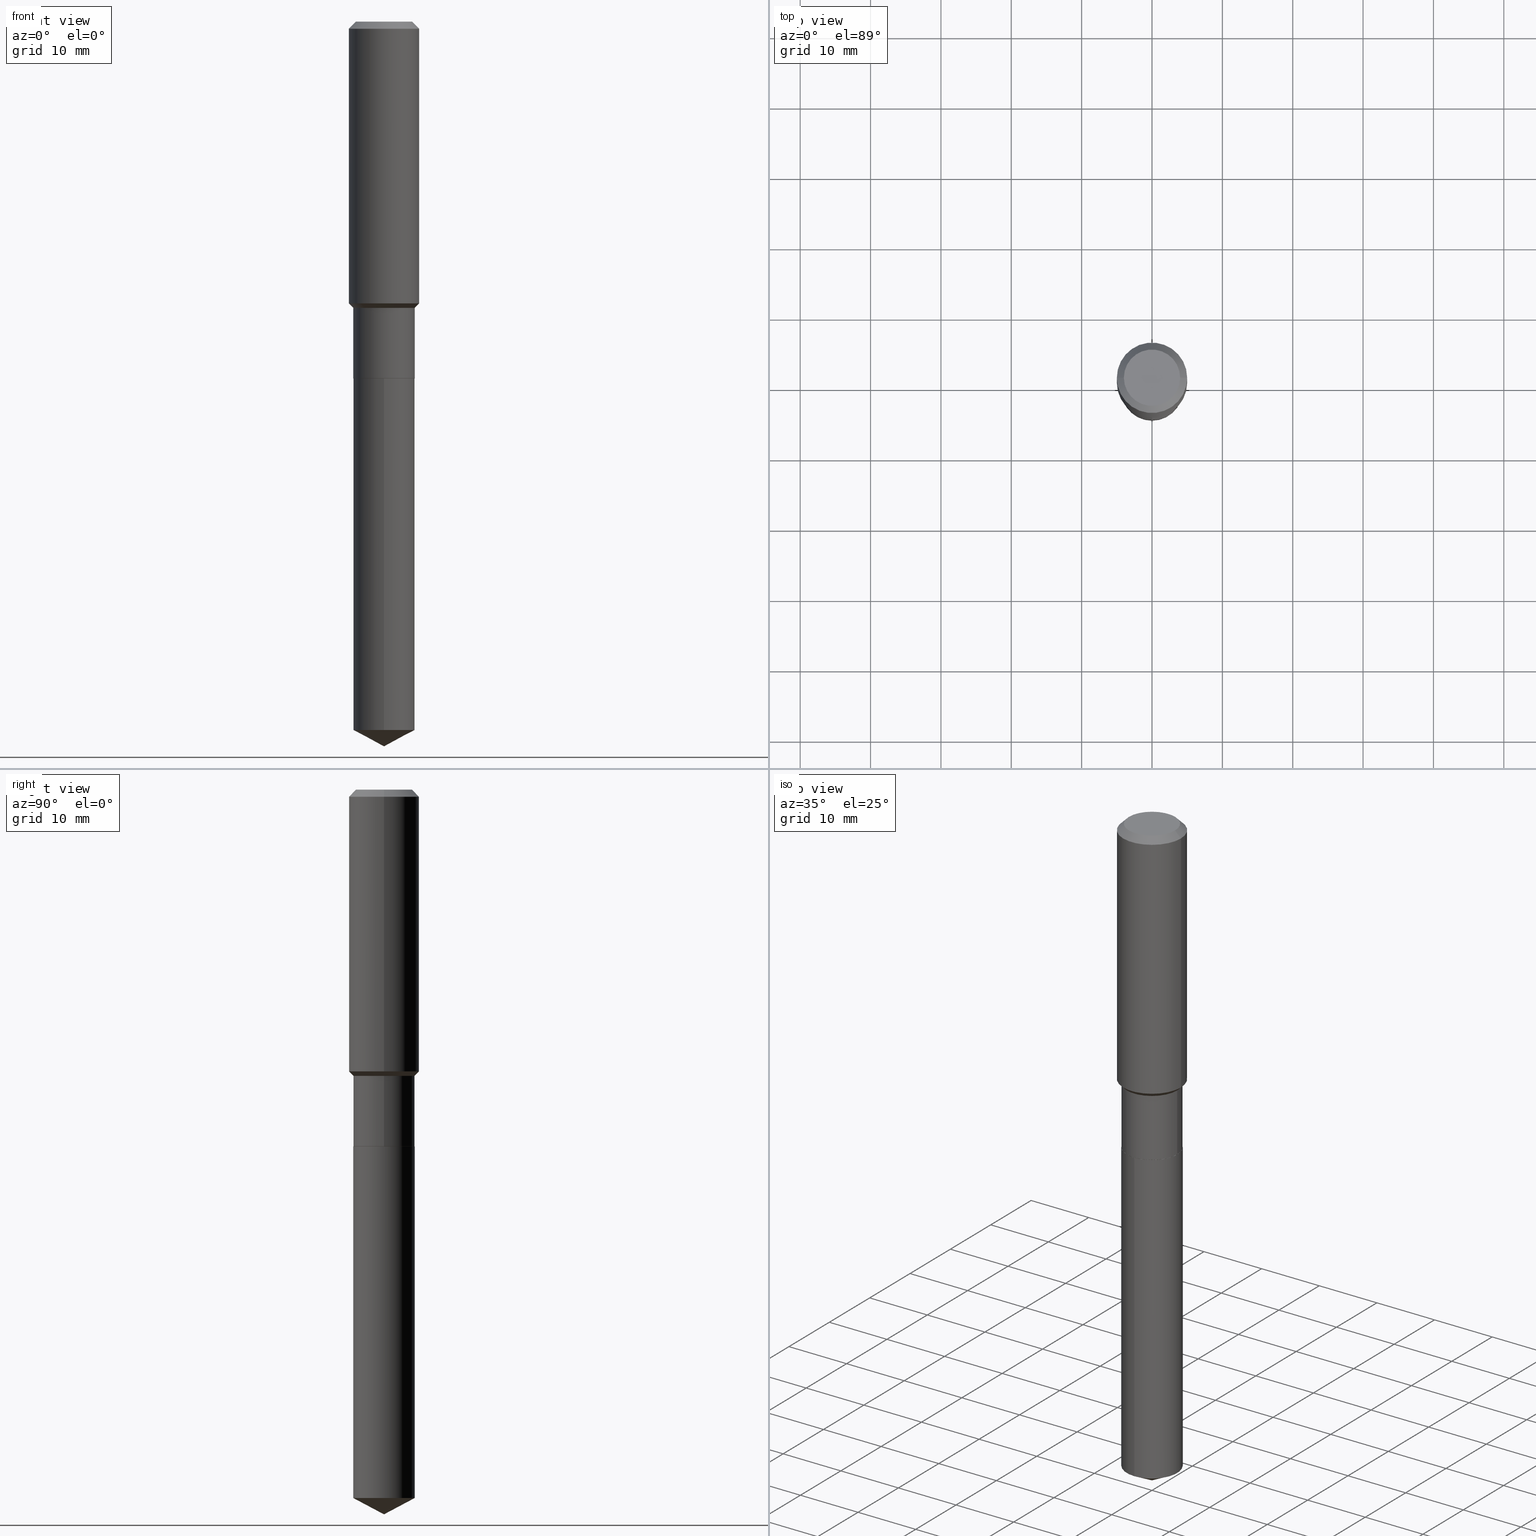
[diagram: canonical four-view strip — front | top / right | iso, engineering-drawing reading convention]
A machine part, canonical four-view strip (front | top / right | iso — engineering-drawing reading convention). The complete STEP part file that produces these views, byte-faithful:
ISO-10303-21;
HEADER;
FILE_DESCRIPTION (( 'STEP AP203' ),
    '1' );
FILE_NAME ('54818.STEP',
    '2024-04-24T15:56:48',
    ( '' ),
    ( '' ),
    'SwSTEP 2.0',
    'SolidWorks 2023',
    '' );
FILE_SCHEMA (( 'CONFIG_CONTROL_DESIGN' ));
ENDSEC;

DATA;
#1 = CARTESIAN_POINT ( 'NONE',  ( 3.916173746224877726E-29, -5.591258216023413300E-15, -1.601399999999999935 ) ) ;
#2 = FACE_OUTER_BOUND ( 'NONE', #102, .T. ) ;
#3 = CC_DESIGN_DATE_AND_TIME_ASSIGNMENT ( #110, #221, ( #424 ) ) ;
#4 = CARTESIAN_POINT ( 'NONE',  ( 4.883112112190480497E-29, -6.971789937401992754E-15, -1.996799999999999908 ) ) ;
#5 = DIRECTION ( 'NONE',  ( -6.982962677686266711E-15, -1.000000000000000000, 3.178415350394722068E-15 ) ) ;
#6 = CARTESIAN_POINT ( 'NONE',  ( 9.692712207603256326E-29, -1.383904135755968393E-14, -3.963599148697392494 ) ) ;
#7 =( CONVERSION_BASED_UNIT ( 'INCH', #355 ) LENGTH_UNIT ( ) NAMED_UNIT ( #206 ) );
#8 = AXIS2_PLACEMENT_3D ( 'NONE', #234, #80, #78 ) ;
#9 = LOCAL_TIME ( 11, 56, 48.00000000000000000, #60 ) ;
#10 = EDGE_CURVE ( 'NONE', #403, #21, #190, .T. ) ;
#11 = VERTEX_POINT ( 'NONE', #36 ) ;
#12 = DIRECTION ( 'NONE',  ( -0.7071067811865451302, 2.468850131082231817E-15, -0.7071067811865499042 ) ) ;
#13 = ORIENTED_EDGE ( 'NONE', *, *, #302, .F. ) ;
#14 = CARTESIAN_POINT ( 'NONE',  ( 0.1713999999999999690, -8.168669740357418199E-15, -1.996799999999999908 ) ) ;
#15 = CARTESIAN_POINT ( 'NONE',  ( -0.1968500000000001082, 1.398703375343757985E-15, -9.682923725166787881E-30 ) ) ;
#16 = CC_DESIGN_PERSON_AND_ORGANIZATION_ASSIGNMENT ( #361, #377, ( #68 ) ) ;
#17 = ORIENTED_EDGE ( 'NONE', *, *, #395, .F. ) ;
#18 = PERSON_AND_ORGANIZATION ( #441, #101 ) ;
#19 = DIRECTION ( 'NONE',  ( -2.445468806185136597E-29, 3.491481338843145583E-15, 1.000000000000000000 ) ) ;
#20 = COORDINATED_UNIVERSAL_TIME_OFFSET ( 5, 0, .BEHIND. ) ;
#21 = VERTEX_POINT ( 'NONE', #428 ) ;
#22 = LINE ( 'NONE', #364, #465 ) ;
#23 = PERSON_AND_ORGANIZATION ( #441, #101 ) ;
#24 = CC_DESIGN_PERSON_AND_ORGANIZATION_ASSIGNMENT ( #65, #436, ( #419 ) ) ;
#25 = ORIENTED_EDGE ( 'NONE', *, *, #359, .F. ) ;
#26 = DIRECTION ( 'NONE',  ( -2.445468806185136597E-29, 3.491481338843145583E-15, 1.000000000000000000 ) ) ;
#27 = DATE_AND_TIME ( #218, #442 ) ;
#28 = VECTOR ( 'NONE', #43, 39.37007874015748143 ) ;
#29 = EDGE_LOOP ( 'NONE', ( #55, #169, #129, #322 ) ) ;
#30 = DESIGN_CONTEXT ( 'detailed design', #279, 'design' ) ;
#31 = EDGE_CURVE ( 'NONE', #162, #445, #122, .T. ) ;
#32 = AXIS2_PLACEMENT_3D ( 'NONE', #385, #128, #91 ) ;
#33 = CARTESIAN_POINT ( 'NONE',  ( -0.1574800000000000089, 1.168406772637159618E-15, 3.855188123707939751E-18 ) ) ;
#34 = DIRECTION ( 'NONE',  ( -2.445468806185136877E-29, 3.491481338843145188E-15, 1.000000000000000000 ) ) ;
#35 = CC_DESIGN_DATE_AND_TIME_ASSIGNMENT ( #367, #178, ( #419 ) ) ;
#36 = CARTESIAN_POINT ( 'NONE',  ( 0.1718999999999999417, -6.791629500317682541E-15, -1.601399999999999935 ) ) ;
#37 = CARTESIAN_POINT ( 'NONE',  ( -0.1968500000000002192, -4.105442381275518145E-15, -1.576449999999999685 ) ) ;
#38 = AXIS2_PLACEMENT_3D ( 'NONE', #369, #212, #468 ) ;
#39 = AXIS2_PLACEMENT_3D ( 'NONE', #250, #56, #170 ) ;
#40 = ORIENTED_EDGE ( 'NONE', *, *, #71, .F. ) ;
#41 =( NAMED_UNIT ( * ) SI_UNIT ( $, .STERADIAN. ) SOLID_ANGLE_UNIT ( ) );
#42 = APPROVAL_PERSON_ORGANIZATION ( #467, #113, #108 ) ;
#43 = DIRECTION ( 'NONE',  ( -2.445468806185136877E-29, 3.491481338843145188E-15, 1.000000000000000000 ) ) ;
#44 = ORIENTED_EDGE ( 'NONE', *, *, #302, .T. ) ;
#45 = FACE_OUTER_BOUND ( 'NONE', #438, .T. ) ;
#46 = LINE ( 'NONE', #201, #82 ) ;
#47 = ORIENTED_EDGE ( 'NONE', *, *, #395, .T. ) ;
#48 = DIRECTION ( 'NONE',  ( 6.273719981627772387E-15, 0.8829475928589306521, 0.4694715627858840334 ) ) ;
#49 = ADVANCED_FACE ( 'NONE', ( #164 ), #317, .T. ) ;
#50 = ORIENTED_EDGE ( 'NONE', *, *, #341, .T. ) ;
#51 = AXIS2_PLACEMENT_3D ( 'NONE', #354, #431, #233 ) ;
#52 = CARTESIAN_POINT ( 'NONE',  ( 9.627810689950950651E-31, -1.374596203102555808E-16, -0.03937000000000027283 ) ) ;
#53 = AXIS2_PLACEMENT_3D ( 'NONE', #116, #365, #176 ) ;
#54 = AXIS2_PLACEMENT_3D ( 'NONE', #409, #70, #220 ) ;
#55 = ORIENTED_EDGE ( 'NONE', *, *, #408, .F. ) ;
#56 = DIRECTION ( 'NONE',  ( 2.438088387897960049E-29, -3.491481338843145188E-15, -1.000000000000000000 ) ) ;
#57 = ORIENTED_EDGE ( 'NONE', *, *, #398, .F. ) ;
#58 = ADVANCED_FACE ( 'NONE', ( #126 ), #312, .T. ) ;
#59 = LINE ( 'NONE', #15, #28 ) ;
#60 = COORDINATED_UNIVERSAL_TIME_OFFSET ( 5, 0, .BEHIND. ) ;
#61 = DIRECTION ( 'NONE',  ( -6.982962677686266711E-15, -1.000000000000000000, 3.178415350394722068E-15 ) ) ;
#62 = AXIS2_PLACEMENT_3D ( 'NONE', #79, #382, #384 ) ;
#63 = LOCAL_TIME ( 11, 56, 48.00000000000000000, #69 ) ;
#64 = ORIENTED_EDGE ( 'NONE', *, *, #341, .F. ) ;
#65 = PERSON_AND_ORGANIZATION ( #441, #101 ) ;
#66 = DIRECTION ( 'NONE',  ( 1.000000000000000000, -6.982962677686265922E-15, 4.876176775795935793E-29 ) ) ;
#67 = DIRECTION ( 'NONE',  ( -2.445394639609318977E-29, 3.491587549601015898E-15, 1.000000000000000000 ) ) ;
#68 = PRODUCT ( '54818', '54818', '', ( #429 ) ) ;
#69 = COORDINATED_UNIVERSAL_TIME_OFFSET ( 5, 0, .BEHIND. ) ;
#70 = DIRECTION ( 'NONE',  ( -2.445468806185136597E-29, 3.491481338843145583E-15, 1.000000000000000000 ) ) ;
#71 = EDGE_CURVE ( 'NONE', #21, #11, #87, .T. ) ;
#72 = VERTEX_POINT ( 'NONE', #120 ) ;
#73 = AXIS2_PLACEMENT_3D ( 'NONE', #257, #253, #360 ) ;
#74 = VECTOR ( 'NONE', #450, 39.37007874015748143 ) ;
#75 = APPROVAL_PERSON_ORGANIZATION ( #134, #77, #370 ) ;
#76 = LINE ( 'NONE', #306, #74 ) ;
#77 = APPROVAL ( #289, 'UNSPECIFIED' ) ;
#78 = DIRECTION ( 'NONE',  ( 1.000000000000000000, -6.982962677686265922E-15, 0.000000000000000000 ) ) ;
#79 = CARTESIAN_POINT ( 'NONE',  ( -8.635915615274354803E-28, 1.233059013239547111E-13, 35.31507874015748172 ) ) ;
#80 = DIRECTION ( 'NONE',  ( -2.445468806185136597E-29, 3.491481338843145583E-15, 1.000000000000000000 ) ) ;
#81 = AXIS2_PLACEMENT_3D ( 'NONE', #273, #329, #407 ) ;
#82 = VECTOR ( 'NONE', #222, 39.37007874015748143 ) ;
#83 = CC_DESIGN_APPROVAL ( #241, ( #276 ) ) ;
#84 = FACE_OUTER_BOUND ( 'NONE', #124, .T. ) ;
#85 = ADVANCED_FACE ( 'NONE', ( #397 ), #238, .T. ) ;
#86 = LINE ( 'NONE', #235, #343 ) ;
#87 = LINE ( 'NONE', #236, #326 ) ;
#88 = AXIS2_PLACEMENT_3D ( 'NONE', #52, #423, #125 ) ;
#89 = VERTEX_POINT ( 'NONE', #320 ) ;
#90 = CARTESIAN_POINT ( 'NONE',  ( 0.000000000000000000, 0.000000000000000000, 0.000000000000000000 ) ) ;
#91 = DIRECTION ( 'NONE',  ( -6.982962677686265133E-15, -1.000000000000000000, 3.541896320645543908E-15 ) ) ;
#92 = PRODUCT_RELATED_PRODUCT_CATEGORY ( 'detail', '', ( #68 ) ) ;
#93 = ORIENTED_EDGE ( 'NONE', *, *, #430, .F. ) ;
#94 = CARTESIAN_POINT ( 'NONE',  ( 4.883112112190480497E-29, -6.971789937401992754E-15, -1.996799999999999908 ) ) ;
#95 = EDGE_CURVE ( 'NONE', #72, #378, #225, .T. ) ;
#96 = ORIENTED_EDGE ( 'NONE', *, *, #10, .F. ) ;
#97 = FACE_OUTER_BOUND ( 'NONE', #433, .T. ) ;
#98 = CARTESIAN_POINT ( 'NONE',  ( -1.200371284294220332E-15, -0.1719000000000069361, -1.996799999999999020 ) ) ;
#99 = PLANE ( 'NONE',  #39 ) ;
#100 = CONICAL_SURFACE ( 'NONE', #452, 0.1968500000000000250, 0.7853981633974449483 ) ;
#101 = ORGANIZATION ( 'UNSPECIFIED', 'UNSPECIFIED', '' ) ;
#102 = EDGE_LOOP ( 'NONE', ( #481, #474, #254, #157 ) ) ;
#103 = DIRECTION ( 'NONE',  ( 0.7071067811865451302, -7.319954787623248157E-15, -0.7071067811865499042 ) ) ;
#104 = CYLINDRICAL_SURFACE ( 'NONE', #308, 0.1718999999999999695 ) ;
#105 = CARTESIAN_POINT ( 'NONE',  ( 1.221422962771708638E-15, 0.1718999999999861472, -3.963599148697392938 ) ) ;
#106 = AXIS2_PLACEMENT_3D ( 'NONE', #94, #274, #489 ) ;
#107 = ORIENTED_EDGE ( 'NONE', *, *, #290, .F. ) ;
#108 = APPROVAL_ROLE ( '' ) ;
#109 = CARTESIAN_POINT ( 'NONE',  ( -0.1718999999999999417, -5.059228243606380469E-15, -1.601399999999999935 ) ) ;
#110 = DATE_AND_TIME ( #298, #392 ) ;
#111 = EDGE_CURVE ( 'NONE', #389, #427, #356, .T. ) ;
#112 = EDGE_LOOP ( 'NONE', ( #25, #393, #44, #339 ) ) ;
#113 = APPROVAL ( #293, 'UNSPECIFIED' ) ;
#114 = CIRCLE ( 'NONE', #390, 0.1718999999999999695 ) ;
#115 = CIRCLE ( 'NONE', #53, 0.1968500000000000250 ) ;
#116 = CARTESIAN_POINT ( 'NONE',  ( 9.627810689950950651E-31, -1.374596203102555808E-16, -0.03937000000000027283 ) ) ;
#117 = FACE_OUTER_BOUND ( 'NONE', #331, .T. ) ;
#118 = CYLINDRICAL_SURFACE ( 'NONE', #483, 0.1718999999999999417 ) ;
#119 = ORIENTED_EDGE ( 'NONE', *, *, #31, .F. ) ;
#120 = CARTESIAN_POINT ( 'NONE',  ( 0.1574800000000000089, -1.284169937930321189E-15, 3.855188123724205385E-18 ) ) ;
#121 = EDGE_CURVE ( 'NONE', #21, #403, #284, .T. ) ;
#122 = CIRCLE ( 'NONE', #416, 0.1718999999999999695 ) ;
#123 = AXIS2_PLACEMENT_3D ( 'NONE', #4, #168, #426 ) ;
#124 = EDGE_LOOP ( 'NONE', ( #64, #141, #93 ) ) ;
#125 = DIRECTION ( 'NONE',  ( -1.000000000000000000, 6.982962677686265922E-15, 0.000000000000000000 ) ) ;
#126 = FACE_OUTER_BOUND ( 'NONE', #349, .T. ) ;
#127 = CARTESIAN_POINT ( 'NONE',  ( 0.000000000000000000, 0.000000000000000000, 0.000000000000000000 ) ) ;
#128 = DIRECTION ( 'NONE',  ( -2.445394639609318977E-29, 3.491587549601015898E-15, 1.000000000000000000 ) ) ;
#129 = ORIENTED_EDGE ( 'NONE', *, *, #71, .T. ) ;
#130 = CARTESIAN_POINT ( 'NONE',  ( 4.883112112190479937E-29, -6.971789937401991965E-15, -1.996799999999999686 ) ) ;
#131 = EDGE_CURVE ( 'NONE', #347, #136, #412, .T. ) ;
#132 = ORIENTED_EDGE ( 'NONE', *, *, #131, .T. ) ;
#133 = CARTESIAN_POINT ( 'NONE',  ( -0.1718999999999999417, -4.369835253251801494E-15, -1.601399999999999935 ) ) ;
#134 = PERSON_AND_ORGANIZATION ( #441, #101 ) ;
#135 = APPLICATION_CONTEXT ( 'configuration controlled 3d designs of mechanical parts and assemblies' ) ;
#136 = VERTEX_POINT ( 'NONE', #215 ) ;
#137 = DATE_AND_TIME ( #211, #63 ) ;
#138 = DIRECTION ( 'NONE',  ( -6.982962677686266711E-15, -1.000000000000000000, 3.178415350394722068E-15 ) ) ;
#139 = ORIENTED_EDGE ( 'NONE', *, *, #111, .F. ) ;
#140 = CARTESIAN_POINT ( 'NONE',  ( 0.1968500000000000250, -1.512055823412797189E-15, -0.03937000000000027283 ) ) ;
#141 = ORIENTED_EDGE ( 'NONE', *, *, #480, .T. ) ;
#142 = DIRECTION ( 'NONE',  ( -1.000000000000000000, 6.982962677686265922E-15, 0.000000000000000000 ) ) ;
#143 = AXIS2_PLACEMENT_3D ( 'NONE', #167, #387, #280 ) ;
#144 = CONICAL_SURFACE ( 'NONE', #417, 0.1713999999999999690, 0.7853981633972775267 ) ;
#145 = AXIS2_PLACEMENT_3D ( 'NONE', #127, #204, #281 ) ;
#146 = ORIENTED_EDGE ( 'NONE', *, *, #228, .F. ) ;
#147 = DIRECTION ( 'NONE',  ( 1.000000000000000000, -6.982962677686265133E-15, 0.000000000000000000 ) ) ;
#148 = APPROVAL_STATUS ( 'not_yet_approved' ) ;
#149 = ORIENTED_EDGE ( 'NONE', *, *, #121, .T. ) ;
#150 = EDGE_CURVE ( 'NONE', #11, #260, #464, .T. ) ;
#151 = AXIS2_PLACEMENT_3D ( 'NONE', #372, #479, #66 ) ;
#152 = DIRECTION ( 'NONE',  ( 1.000000000000000000, -6.982962677686265922E-15, 4.876223630392693006E-29 ) ) ;
#153 = EDGE_CURVE ( 'NONE', #136, #347, #114, .T. ) ;
#154 = DIRECTION ( 'NONE',  ( 1.000000000000000000, -6.982962677686266711E-15, 4.876176775795936353E-29 ) ) ;
#155 = CIRCLE ( 'NONE', #264, 0.1574800000000000089 ) ;
#156 = AXIS2_PLACEMENT_3D ( 'NONE', #130, #194, #243 ) ;
#157 = ORIENTED_EDGE ( 'NONE', *, *, #490, .F. ) ;
#158 = FACE_OUTER_BOUND ( 'NONE', #411, .T. ) ;
#159 = DIRECTION ( 'NONE',  ( -2.445468806185136597E-29, 3.491481338843145583E-15, 1.000000000000000000 ) ) ;
#160 = APPLICATION_PROTOCOL_DEFINITION ( 'international standard', 'config_control_design', 1994, #135 ) ;
#161 = ADVANCED_FACE ( 'NONE', ( #400 ), #100, .T. ) ;
#162 = VERTEX_POINT ( 'NONE', #105 ) ;
#163 = CIRCLE ( 'NONE', #239, 0.1718999999999999417 ) ;
#164 = FACE_OUTER_BOUND ( 'NONE', #406, .T. ) ;
#165 =( NAMED_UNIT ( * ) PLANE_ANGLE_UNIT ( ) SI_UNIT ( $, .RADIAN. ) );
#166 = ADVANCED_FACE ( 'NONE', ( #472 ), #144, .T. ) ;
#167 = CARTESIAN_POINT ( 'NONE',  ( 0.000000000000000000, 0.000000000000000000, 0.000000000000000000 ) ) ;
#168 = DIRECTION ( 'NONE',  ( -2.445468806185136597E-29, 3.491481338843145583E-15, 1.000000000000000000 ) ) ;
#169 = ORIENTED_EDGE ( 'NONE', *, *, #10, .T. ) ;
#170 = DIRECTION ( 'NONE',  ( -1.000000000000000000, 6.982962677686265922E-15, -4.876176775795935793E-29 ) ) ;
#171 = ORIENTED_EDGE ( 'NONE', *, *, #325, .F. ) ;
#172 = CARTESIAN_POINT ( 'NONE',  ( 9.627810689950950651E-31, -1.374596203102555808E-16, -0.03937000000000027283 ) ) ;
#173 = CLOSED_SHELL ( 'NONE', ( #444, #451, #58, #85, #49, #307, #262, #439, #161, #269, #224, #166 ) ) ;
#174 = AXIS2_PLACEMENT_3D ( 'NONE', #90, #321, #462 ) ;
#175 = APPROVAL_PERSON_ORGANIZATION ( #186, #241, #248 ) ;
#176 = DIRECTION ( 'NONE',  ( 1.000000000000000000, -6.982962677686265922E-15, 0.000000000000000000 ) ) ;
#177 = ORIENTED_EDGE ( 'NONE', *, *, #121, .F. ) ;
#178 = DATE_TIME_ROLE ( 'classification_date' ) ;
#179 = CARTESIAN_POINT ( 'NONE',  ( 4.883112112190479937E-29, -6.971789937401991965E-15, -1.996799999999999686 ) ) ;
#180 = EDGE_CURVE ( 'NONE', #260, #11, #163, .T. ) ;
#181 = ORIENTED_EDGE ( 'NONE', *, *, #153, .T. ) ;
#182 = CARTESIAN_POINT ( 'NONE',  ( 4.883112112190480497E-29, -6.971789937401992754E-15, -1.996799999999999908 ) ) ;
#183 = PERSON_AND_ORGANIZATION_ROLE ( 'creator' ) ;
#184 = EDGE_LOOP ( 'NONE', ( #187, #263, #244, #96 ) ) ;
#185 = CARTESIAN_POINT ( 'NONE',  ( 4.883112112190479937E-29, -6.971789937401991965E-15, -1.996799999999999686 ) ) ;
#186 = PERSON_AND_ORGANIZATION ( #441, #101 ) ;
#187 = ORIENTED_EDGE ( 'NONE', *, *, #386, .F. ) ;
#188 = MANIFOLD_SOLID_BREP ( 'Body-Move/Copy2[1]', #482 ) ;
#189 = DIRECTION ( 'NONE',  ( -2.445468806185136597E-29, 3.491481338843145583E-15, 1.000000000000000000 ) ) ;
#190 = CIRCLE ( 'NONE', #51, 0.1718999999999999695 ) ;
#191 = CIRCLE ( 'NONE', #8, 0.1968500000000002192 ) ;
#192 = DIRECTION ( 'NONE',  ( -6.165590087286841551E-15, -0.8829475928589272105, 0.4694715627858901952 ) ) ;
#193 = DIRECTION ( 'NONE',  ( 1.000000000000000000, -6.982962677686265922E-15, 4.876223630392693006E-29 ) ) ;
#194 = DIRECTION ( 'NONE',  ( -2.445394639609318977E-29, 3.491587549601015898E-15, 1.000000000000000000 ) ) ;
#195 = AXIS2_PLACEMENT_3D ( 'NONE', #185, #435, #61 ) ;
#196 = CONICAL_SURFACE ( 'NONE', #88, 0.1968500000000000250, 0.7853981633974449483 ) ;
#197 = DIRECTION ( 'NONE',  ( -2.445468806185136877E-29, 3.491481338843145188E-15, 1.000000000000000000 ) ) ;
#198 = ADVANCED_FACE ( 'NONE', ( #404 ), #104, .T. ) ;
#199 = ORIENTED_EDGE ( 'NONE', *, *, #305, .T. ) ;
#200 = CARTESIAN_POINT ( 'NONE',  ( 9.692712207603256326E-29, -1.383904135755968393E-14, -3.963599148697392494 ) ) ;
#201 = CARTESIAN_POINT ( 'NONE',  ( -0.1713999999999999690, -5.753919688309181058E-15, -1.996799999999999908 ) ) ;
#202 = VERTEX_POINT ( 'NONE', #140 ) ;
#203 = VERTEX_POINT ( 'NONE', #337 ) ;
#204 = DIRECTION ( 'NONE',  ( 0.000000000000000000, 0.000000000000000000, 1.000000000000000000 ) ) ;
#205 = VECTOR ( 'NONE', #12, 39.37007874015748143 ) ;
#206 = DIMENSIONAL_EXPONENTS ( 1.000000000000000000, 0.000000000000000000, 0.000000000000000000, 0.000000000000000000, 0.000000000000000000, 0.000000000000000000, 0.000000000000000000 ) ;
#207 = VERTEX_POINT ( 'NONE', #440 ) ;
#208 = LINE ( 'NONE', #133, #357 ) ;
#209 = UNCERTAINTY_MEASURE_WITH_UNIT (LENGTH_MEASURE( 1.000000000000000082E-05 ), #7, 'distance_accuracy_value', 'NONE');
#210 = ORIENTED_EDGE ( 'NONE', *, *, #256, .T. ) ;
#211 = CALENDAR_DATE ( 2024, 24, 4 ) ;
#212 = DIRECTION ( 'NONE',  ( -2.445468806185136597E-29, 3.491481338843145583E-15, 1.000000000000000000 ) ) ;
#213 = ORIENTED_EDGE ( 'NONE', *, *, #95, .T. ) ;
#214 = PERSON_AND_ORGANIZATION_ROLE ( 'creator' ) ;
#215 = CARTESIAN_POINT ( 'NONE',  ( 1.221422962771709230E-15, 0.1718999999999930028, -1.996800000000000130 ) ) ;
#216 = ORIENTED_EDGE ( 'NONE', *, *, #290, .T. ) ;
#217 = LINE ( 'NONE', #14, #226 ) ;
#218 = CALENDAR_DATE ( 2024, 24, 4 ) ;
#219 = ORIENTED_EDGE ( 'NONE', *, *, #386, .T. ) ;
#220 = DIRECTION ( 'NONE',  ( 1.000000000000000000, -6.982962677686269077E-15, 0.000000000000000000 ) ) ;
#221 = DATE_TIME_ROLE ( 'creation_date' ) ;
#222 = DIRECTION ( 'NONE',  ( -0.7071067811864267805, 7.493145998869918709E-15, 0.7071067811866682540 ) ) ;
#223 = ORIENTED_EDGE ( 'NONE', *, *, #282, .F. ) ;
#224 = ADVANCED_FACE ( 'NONE', ( #297 ), #259, .F. ) ;
#225 = CIRCLE ( 'NONE', #486, 0.1574800000000000089 ) ;
#226 = VECTOR ( 'NONE', #463, 39.37007874015748143 ) ;
#227 = PRODUCT_DEFINITION_SHAPE ( 'NONE', 'NONE',  #424 ) ;
#228 = EDGE_CURVE ( 'NONE', #72, #202, #22, .T. ) ;
#229 = DIRECTION ( 'NONE',  ( 2.445394639609318696E-29, -3.491587549601015898E-15, -1.000000000000000000 ) ) ;
#230 = AXIS2_PLACEMENT_3D ( 'NONE', #422, #456, #245 ) ;
#231 = VECTOR ( 'NONE', #192, 39.37007874015748854 ) ;
#232 = LINE ( 'NONE', #268, #379 ) ;
#233 = DIRECTION ( 'NONE',  ( 1.000000000000000000, -6.982962677686268288E-15, 0.000000000000000000 ) ) ;
#234 = CARTESIAN_POINT ( 'NONE',  ( 3.855159299510557695E-29, -5.504145756619275933E-15, -1.576449999999999685 ) ) ;
#235 = CARTESIAN_POINT ( 'NONE',  ( -0.1718999999999999417, 1.221422962771611806E-15, -8.455649420148180377E-30 ) ) ;
#236 = CARTESIAN_POINT ( 'NONE',  ( 0.1718999999999999417, -1.200371284294268847E-15, 8.382147877593211677E-30 ) ) ;
#237 = CARTESIAN_POINT ( 'NONE',  ( 9.916374052504005138E-29, -1.415796335034948786E-14, -4.054999999999999716 ) ) ;
#238 = CONICAL_SURFACE ( 'NONE', #247, 0.1718999999999999417, 0.7853981633974489451 ) ;
#239 = AXIS2_PLACEMENT_3D ( 'NONE', #376, #443, #294 ) ;
#240 = LOCAL_TIME ( 11, 56, 48.00000000000000000, #323 ) ;
#241 = APPROVAL ( #148, 'UNSPECIFIED' ) ;
#242 = ORIENTED_EDGE ( 'NONE', *, *, #352, .T. ) ;
#243 = DIRECTION ( 'NONE',  ( -6.982962677686266711E-15, -1.000000000000000000, 3.178415350394722068E-15 ) ) ;
#244 = ORIENTED_EDGE ( 'NONE', *, *, #246, .T. ) ;
#245 = DIRECTION ( 'NONE',  ( 1.000000000000000000, -6.982962677686266711E-15, 4.876176775795936353E-29 ) ) ;
#246 = EDGE_CURVE ( 'NONE', #207, #21, #217, .T. ) ;
#247 = AXIS2_PLACEMENT_3D ( 'NONE', #1, #159, #358 ) ;
#248 = APPROVAL_ROLE ( '' ) ;
#249 = CIRCLE ( 'NONE', #487, 0.1713999999999999690 ) ;
#250 = CARTESIAN_POINT ( 'NONE',  ( -4.713871149261283817E-47, 6.730158695841841775E-33, 1.927594061857935365E-18 ) ) ;
#251 = CC_DESIGN_PERSON_AND_ORGANIZATION_ASSIGNMENT ( #18, #475, ( #276 ) ) ;
#252 = EDGE_LOOP ( 'NONE', ( #327, #314 ) ) ;
#253 = DIRECTION ( 'NONE',  ( -2.445468806185136597E-29, 3.491481338843145583E-15, 1.000000000000000000 ) ) ;
#254 = ORIENTED_EDGE ( 'NONE', *, *, #398, .T. ) ;
#255 = APPROVAL_DATE_TIME ( #137, #241 ) ;
#256 = EDGE_CURVE ( 'NONE', #207, #300, #249, .T. ) ;
#257 = CARTESIAN_POINT ( 'NONE',  ( 4.881889377787387135E-29, -6.970044196732570461E-15, -1.996299999999999741 ) ) ;
#258 = ORIENTED_EDGE ( 'NONE', *, *, #315, .F. ) ;
#259 = PLANE ( 'NONE',  #151 ) ;
#260 = VERTEX_POINT ( 'NONE', #109 ) ;
#261 = FACE_OUTER_BOUND ( 'NONE', #453, .T. ) ;
#262 = ADVANCED_FACE ( 'NONE', ( #261 ), #413, .T. ) ;
#263 = ORIENTED_EDGE ( 'NONE', *, *, #418, .T. ) ;
#264 = AXIS2_PLACEMENT_3D ( 'NONE', #383, #189, #152 ) ;
#265 = CARTESIAN_POINT ( 'NONE',  ( -1.200371284294220332E-15, -0.1719000000000069361, -1.996799999999999020 ) ) ;
#266 = DIRECTION ( 'NONE',  ( -2.445468806185136597E-29, 3.491481338843145583E-15, 1.000000000000000000 ) ) ;
#267 = FACE_OUTER_BOUND ( 'NONE', #29, .T. ) ;
#268 = CARTESIAN_POINT ( 'NONE',  ( 0.1718999999999999417, -6.791629500317682541E-15, -1.601399999999999935 ) ) ;
#269 = ADVANCED_FACE ( 'NONE', ( #301 ), #99, .F. ) ;
#270 = ORIENTED_EDGE ( 'NONE', *, *, #180, .T. ) ;
#271 = DIRECTION ( 'NONE',  ( -2.445394639609318977E-29, 3.491587549601015898E-15, 1.000000000000000000 ) ) ;
#272 = DIRECTION ( 'NONE',  ( -2.445468806185136877E-29, 3.491481338843145188E-15, 1.000000000000000000 ) ) ;
#273 = CARTESIAN_POINT ( 'NONE',  ( 3.855159299510557695E-29, -5.504145756619275933E-15, -1.576449999999999685 ) ) ;
#274 = DIRECTION ( 'NONE',  ( -2.445468806185136597E-29, 3.491481338843145583E-15, 1.000000000000000000 ) ) ;
#275 = AXIS2_PLACEMENT_3D ( 'NONE', #448, #229, #342 ) ;
#276 = PRODUCT_DEFINITION_FORMATION_WITH_SPECIFIED_SOURCE ( 'ANY', '', #68, .NOT_KNOWN. ) ;
#277 = ORIENTED_EDGE ( 'NONE', *, *, #325, .T. ) ;
#278 = LINE ( 'NONE', #237, #484 ) ;
#279 = APPLICATION_CONTEXT ( 'configuration controlled 3d designs of mechanical parts and assemblies' ) ;
#280 = DIRECTION ( 'NONE',  ( 1.000000000000000000, -6.982962677686266711E-15, 4.876176775795935793E-29 ) ) ;
#281 = DIRECTION ( 'NONE',  ( 1.000000000000000000, 0.000000000000000000, 0.000000000000000000 ) ) ;
#282 = EDGE_CURVE ( 'NONE', #260, #427, #208, .T. ) ;
#283 = DIRECTION ( 'NONE',  ( -2.445468806185136597E-29, 3.491481338843145583E-15, 1.000000000000000000 ) ) ;
#284 = CIRCLE ( 'NONE', #73, 0.1718999999999999695 ) ;
#285 = ORIENTED_EDGE ( 'NONE', *, *, #315, .T. ) ;
#286 = PERSON_AND_ORGANIZATION ( #441, #101 ) ;
#287 = VECTOR ( 'NONE', #67, 39.37007874015748143 ) ;
#288 = DIRECTION ( 'NONE',  ( -0.7071067811865479058, 7.493145998870355738E-15, 0.7071067811865470176 ) ) ;
#289 = APPROVAL_STATUS ( 'not_yet_approved' ) ;
#290 = EDGE_CURVE ( 'NONE', #427, #203, #59, .T. ) ;
#291 = CARTESIAN_POINT ( 'NONE',  ( 4.883112112190480497E-29, -6.971789937401992754E-15, -1.996799999999999908 ) ) ;
#292 = ORIENTED_EDGE ( 'NONE', *, *, #246, .F. ) ;
#293 = APPROVAL_STATUS ( 'not_yet_approved' ) ;
#294 = DIRECTION ( 'NONE',  ( 1.000000000000000000, -6.982962677686269077E-15, 0.000000000000000000 ) ) ;
#295 = COORDINATED_UNIVERSAL_TIME_OFFSET ( 5, 0, .BEHIND. ) ;
#296 = APPROVAL_DATE_TIME ( #471, #113 ) ;
#297 = FACE_OUTER_BOUND ( 'NONE', #252, .T. ) ;
#298 = CALENDAR_DATE ( 2024, 24, 4 ) ;
#299 = CONICAL_SURFACE ( 'NONE', #32, 74.04434902938389484, 1.082104136236488490 ) ;
#300 = VERTEX_POINT ( 'NONE', #473 ) ;
#301 = FACE_OUTER_BOUND ( 'NONE', #488, .T. ) ;
#302 = EDGE_CURVE ( 'NONE', #445, #347, #449, .T. ) ;
#303 = ORIENTED_EDGE ( 'NONE', *, *, #111, .T. ) ;
#304 = CIRCLE ( 'NONE', #338, 0.1968500000000000250 ) ;
#305 = EDGE_CURVE ( 'NONE', #389, #202, #447, .T. ) ;
#306 = CARTESIAN_POINT ( 'NONE',  ( 1.221422962771660715E-15, 0.1718999999999930028, -1.996800000000000130 ) ) ;
#307 = ADVANCED_FACE ( 'NONE', ( #267 ), #118, .T. ) ;
#308 = AXIS2_PLACEMENT_3D ( 'NONE', #179, #324, #333 ) ;
#309 = CARTESIAN_POINT ( 'NONE',  ( 0.000000000000000000, 0.000000000000000000, 0.000000000000000000 ) ) ;
#310 = DIRECTION ( 'NONE',  ( -2.445468806185136597E-29, 3.491481338843145583E-15, 1.000000000000000000 ) ) ;
#311 = ORIENTED_EDGE ( 'NONE', *, *, #150, .T. ) ;
#312 = CYLINDRICAL_SURFACE ( 'NONE', #143, 0.1968500000000001082 ) ;
#313 = DIRECTION ( 'NONE',  ( -6.982962677686266711E-15, -1.000000000000000000, 3.178415350394722068E-15 ) ) ;
#314 = ORIENTED_EDGE ( 'NONE', *, *, #418, .F. ) ;
#315 = EDGE_CURVE ( 'NONE', #11, #389, #232, .T. ) ;
#316 = CC_DESIGN_APPROVAL ( #77, ( #424 ) ) ;
#317 = CYLINDRICAL_SURFACE ( 'NONE', #230, 0.1718999999999999417 ) ;
#318 =( LENGTH_UNIT ( ) NAMED_UNIT ( * ) SI_UNIT ( $, .METRE. ) );
#319 = SECURITY_CLASSIFICATION_LEVEL ( 'unclassified' ) ;
#320 = CARTESIAN_POINT ( 'NONE',  ( 9.916075263615787221E-29, -1.415838751363211889E-14, -4.054999999999999716 ) ) ;
#321 = DIRECTION ( 'NONE',  ( -2.445468806185136597E-29, 3.491481338843145583E-15, 1.000000000000000000 ) ) ;
#322 = ORIENTED_EDGE ( 'NONE', *, *, #180, .F. ) ;
#323 = COORDINATED_UNIVERSAL_TIME_OFFSET ( 5, 0, .BEHIND. ) ;
#324 = DIRECTION ( 'NONE',  ( -2.445394639609318977E-29, 3.491587549601015898E-15, 1.000000000000000000 ) ) ;
#325 = EDGE_CURVE ( 'NONE', #427, #389, #191, .T. ) ;
#326 = VECTOR ( 'NONE', #197, 39.37007874015748143 ) ;
#327 = ORIENTED_EDGE ( 'NONE', *, *, #256, .F. ) ;
#328 = CONICAL_SURFACE ( 'NONE', #62, 74.04434902938389484, 1.082104136236488490 ) ;
#329 = DIRECTION ( 'NONE',  ( -2.445468806185136597E-29, 3.491481338843145583E-15, 1.000000000000000000 ) ) ;
#330 = CARTESIAN_POINT ( 'NONE',  ( 9.627810689950950651E-31, -1.374596203102555808E-16, -0.03937000000000027283 ) ) ;
#331 = EDGE_LOOP ( 'NONE', ( #466, #50, #119 ) ) ;
#332 = CALENDAR_DATE ( 2024, 24, 4 ) ;
#333 = DIRECTION ( 'NONE',  ( -6.982962677686266711E-15, -1.000000000000000000, 3.178415350394722068E-15 ) ) ;
#334 = ORIENTED_EDGE ( 'NONE', *, *, #305, .F. ) ;
#335 = DIRECTION ( 'NONE',  ( 1.000000000000000000, -6.982962677686265133E-15, 0.000000000000000000 ) ) ;
#336 = ORIENTED_EDGE ( 'NONE', *, *, #359, .T. ) ;
#337 = CARTESIAN_POINT ( 'NONE',  ( -0.1968500000000000250, -1.422099313121007378E-15, -0.03937000000000027283 ) ) ;
#338 = AXIS2_PLACEMENT_3D ( 'NONE', #330, #310, #457 ) ;
#339 = ORIENTED_EDGE ( 'NONE', *, *, #153, .F. ) ;
#340 = FACE_OUTER_BOUND ( 'NONE', #375, .T. ) ;
#341 = EDGE_CURVE ( 'NONE', #89, #445, #485, .T. ) ;
#342 = DIRECTION ( 'NONE',  ( 6.982962677686265922E-15, 1.000000000000000000, -3.491587549601015898E-15 ) ) ;
#343 = VECTOR ( 'NONE', #272, 39.37007874015748143 ) ;
#344 = ADVANCED_FACE ( 'NONE', ( #340 ), #415, .F. ) ;
#345 = ORIENTED_EDGE ( 'NONE', *, *, #490, .T. ) ;
#346 = CARTESIAN_POINT ( 'NONE',  ( -1.200371284294172211E-15, -0.1719000000000137640, -3.963599148697392049 ) ) ;
#347 = VERTEX_POINT ( 'NONE', #265 ) ;
#348 = MANIFOLD_SOLID_BREP ( 'Body-Move/Copy2[2]', #173 ) ;
#349 = EDGE_LOOP ( 'NONE', ( #303, #216, #57, #334 ) ) ;
#350 = CARTESIAN_POINT ( 'NONE',  ( 0.1968500000000002192, -6.878741959721819908E-15, -1.576449999999999685 ) ) ;
#351 = CARTESIAN_POINT ( 'NONE',  ( -0.1968500000000000250, 1.237136582792286225E-15, -0.03937000000000027283 ) ) ;
#352 = EDGE_CURVE ( 'NONE', #378, #72, #155, .T. ) ;
#353 = ADVANCED_BREP_SHAPE_REPRESENTATION ( '54818', ( #188, #348, #145 ), #399 ) ;
#354 = CARTESIAN_POINT ( 'NONE',  ( 4.881889377787387135E-29, -6.970044196732570461E-15, -1.996299999999999741 ) ) ;
#355 = LENGTH_MEASURE_WITH_UNIT ( LENGTH_MEASURE( 0.02539999999999999897 ), #318 );
#356 = CIRCLE ( 'NONE', #81, 0.1968500000000002192 ) ;
#357 = VECTOR ( 'NONE', #288, 39.37007874015748854 ) ;
#358 = DIRECTION ( 'NONE',  ( 1.000000000000000000, -6.982962677686269077E-15, 0.000000000000000000 ) ) ;
#359 = EDGE_CURVE ( 'NONE', #162, #136, #76, .T. ) ;
#360 = DIRECTION ( 'NONE',  ( 1.000000000000000000, -6.982962677686268288E-15, 0.000000000000000000 ) ) ;
#361 = PERSON_AND_ORGANIZATION ( #441, #101 ) ;
#362 = ORIENTED_EDGE ( 'NONE', *, *, #150, .F. ) ;
#363 = CALENDAR_DATE ( 2024, 24, 4 ) ;
#364 = CARTESIAN_POINT ( 'NONE',  ( 0.1968500000000000250, -1.487948651171581601E-15, -0.03937000000000027283 ) ) ;
#365 = DIRECTION ( 'NONE',  ( -2.445468806185136597E-29, 3.491481338843145583E-15, 1.000000000000000000 ) ) ;
#366 = ORIENTED_EDGE ( 'NONE', *, *, #282, .T. ) ;
#367 = DATE_AND_TIME ( #363, #9 ) ;
#368 = CONICAL_SURFACE ( 'NONE', #106, 0.1713999999999999690, 0.7853981633972775267 ) ;
#369 = CARTESIAN_POINT ( 'NONE',  ( 3.916173746224877726E-29, -5.591258216023413300E-15, -1.601399999999999935 ) ) ;
#370 = APPROVAL_ROLE ( '' ) ;
#371 = ORIENTED_EDGE ( 'NONE', *, *, #131, .F. ) ;
#372 = CARTESIAN_POINT ( 'NONE',  ( 2.660723506269796897E-29, -1.015437691158448916E-14, -1.996799999999999908 ) ) ;
#373 = APPROVAL_DATE_TIME ( #27, #77 ) ;
#374 = ADVANCED_FACE ( 'NONE', ( #117 ), #328, .T. ) ;
#375 = EDGE_LOOP ( 'NONE', ( #132, #181 ) ) ;
#376 = CARTESIAN_POINT ( 'NONE',  ( 3.916173746224877726E-29, -5.591258216023413300E-15, -1.601399999999999935 ) ) ;
#377 = PERSON_AND_ORGANIZATION_ROLE ( 'design_owner' ) ;
#378 = VERTEX_POINT ( 'NONE', #33 ) ;
#379 = VECTOR ( 'NONE', #420, 39.37007874015748854 ) ;
#380 = CC_DESIGN_SECURITY_CLASSIFICATION ( #419, ( #276 ) ) ;
#381 = ADVANCED_FACE ( 'NONE', ( #84 ), #299, .T. ) ;
#382 = DIRECTION ( 'NONE',  ( -2.445394639609318977E-29, 3.491587549601015898E-15, 1.000000000000000000 ) ) ;
#383 = CARTESIAN_POINT ( 'NONE',  ( -9.427742298522567634E-47, 1.346031739168368355E-32, 3.855188123715870730E-18 ) ) ;
#384 = DIRECTION ( 'NONE',  ( -6.982962677686265133E-15, -1.000000000000000000, 3.541896320645543908E-15 ) ) ;
#385 = CARTESIAN_POINT ( 'NONE',  ( -8.635915615274354803E-28, 1.233059013239547111E-13, 35.31507874015748172 ) ) ;
#386 = EDGE_CURVE ( 'NONE', #300, #403, #46, .T. ) ;
#387 = DIRECTION ( 'NONE',  ( -2.445468806185136597E-29, 3.491481338843145583E-15, 1.000000000000000000 ) ) ;
#388 = CYLINDRICAL_SURFACE ( 'NONE', #174, 0.1968500000000001082 ) ;
#389 = VERTEX_POINT ( 'NONE', #350 ) ;
#390 = AXIS2_PLACEMENT_3D ( 'NONE', #476, #437, #138 ) ;
#391 = CIRCLE ( 'NONE', #123, 0.1713999999999999690 ) ;
#392 = LOCAL_TIME ( 11, 56, 48.00000000000000000, #20 ) ;
#393 = ORIENTED_EDGE ( 'NONE', *, *, #31, .T. ) ;
#394 = LINE ( 'NONE', #351, #205 ) ;
#395 = EDGE_CURVE ( 'NONE', #203, #202, #115, .T. ) ;
#396 = ORIENTED_EDGE ( 'NONE', *, *, #408, .T. ) ;
#397 = FACE_OUTER_BOUND ( 'NONE', #425, .T. ) ;
#398 = EDGE_CURVE ( 'NONE', #202, #203, #304, .T. ) ;
#399 =( GEOMETRIC_REPRESENTATION_CONTEXT ( 3 ) GLOBAL_UNCERTAINTY_ASSIGNED_CONTEXT ( ( #209 ) ) GLOBAL_UNIT_ASSIGNED_CONTEXT ( ( #7, #165, #41 ) ) REPRESENTATION_CONTEXT ( 'NONE', 'WORKASPACE' ) );
#400 = FACE_OUTER_BOUND ( 'NONE', #458, .T. ) ;
#401 = ORIENTED_EDGE ( 'NONE', *, *, #430, .T. ) ;
#402 = DIRECTION ( 'NONE',  ( 2.445468806185136597E-29, -3.491481338843145583E-15, -1.000000000000000000 ) ) ;
#403 = VERTEX_POINT ( 'NONE', #421 ) ;
#404 = FACE_OUTER_BOUND ( 'NONE', #112, .T. ) ;
#405 = APPLICATION_PROTOCOL_DEFINITION ( 'international standard', 'config_control_design', 1994, #279 ) ;
#406 = EDGE_LOOP ( 'NONE', ( #149, #396, #362, #40 ) ) ;
#407 = DIRECTION ( 'NONE',  ( 1.000000000000000000, -6.982962677686265922E-15, 0.000000000000000000 ) ) ;
#408 = EDGE_CURVE ( 'NONE', #403, #260, #86, .T. ) ;
#409 = CARTESIAN_POINT ( 'NONE',  ( 3.916173746224877726E-29, -5.591258216023413300E-15, -1.601399999999999935 ) ) ;
#410 = CARTESIAN_POINT ( 'NONE',  ( 9.916075263615787221E-29, -1.415838751363211889E-14, -4.054999999999999716 ) ) ;
#411 = EDGE_LOOP ( 'NONE', ( #401, #336, #371, #13 ) ) ;
#412 = CIRCLE ( 'NONE', #195, 0.1718999999999999695 ) ;
#413 = CONICAL_SURFACE ( 'NONE', #54, 0.1718999999999999417, 0.7853981633974489451 ) ;
#414 = CC_DESIGN_PERSON_AND_ORGANIZATION_ASSIGNMENT ( #286, #214, ( #276 ) ) ;
#415 = PLANE ( 'NONE',  #275 ) ;
#416 = AXIS2_PLACEMENT_3D ( 'NONE', #6, #460, #5 ) ;
#417 = AXIS2_PLACEMENT_3D ( 'NONE', #291, #19, #147 ) ;
#418 = EDGE_CURVE ( 'NONE', #300, #207, #391, .T. ) ;
#419 = SECURITY_CLASSIFICATION ( '', '', #319 ) ;
#420 = DIRECTION ( 'NONE',  ( 0.7071067811865479058, -2.468850131082261399E-15, 0.7071067811865470176 ) ) ;
#421 = CARTESIAN_POINT ( 'NONE',  ( -0.1718999999999999695, -5.059228243606378892E-15, -1.996299999999999741 ) ) ;
#422 = CARTESIAN_POINT ( 'NONE',  ( 0.000000000000000000, 0.000000000000000000, 0.000000000000000000 ) ) ;
#423 = DIRECTION ( 'NONE',  ( 2.445468806185136597E-29, -3.491481338843145583E-15, -1.000000000000000000 ) ) ;
#424 = PRODUCT_DEFINITION ( 'UNKNOWN', '', #276, #30 ) ;
#425 = EDGE_LOOP ( 'NONE', ( #311, #366, #139, #258 ) ) ;
#426 = DIRECTION ( 'NONE',  ( 1.000000000000000000, -6.982962677686265133E-15, 0.000000000000000000 ) ) ;
#427 = VERTEX_POINT ( 'NONE', #37 ) ;
#428 = CARTESIAN_POINT ( 'NONE',  ( 0.1718999999999999695, -8.170415481026838913E-15, -1.996299999999999741 ) ) ;
#429 = MECHANICAL_CONTEXT ( 'NONE', #135, 'mechanical' ) ;
#430 = EDGE_CURVE ( 'NONE', #445, #162, #432, .T. ) ;
#431 = DIRECTION ( 'NONE',  ( -2.445468806185136597E-29, 3.491481338843145583E-15, 1.000000000000000000 ) ) ;
#432 = CIRCLE ( 'NONE', #446, 0.1718999999999999695 ) ;
#433 = EDGE_LOOP ( 'NONE', ( #107, #277, #199, #17 ) ) ;
#434 = SHAPE_DEFINITION_REPRESENTATION ( #227, #353 ) ;
#435 = DIRECTION ( 'NONE',  ( -2.445394639609318977E-29, 3.491587549601015898E-15, 1.000000000000000000 ) ) ;
#436 = PERSON_AND_ORGANIZATION_ROLE ( 'classification_officer' ) ;
#437 = DIRECTION ( 'NONE',  ( -2.445394639609318977E-29, 3.491587549601015898E-15, 1.000000000000000000 ) ) ;
#438 = EDGE_LOOP ( 'NONE', ( #210, #219, #177, #292 ) ) ;
#439 = ADVANCED_FACE ( 'NONE', ( #97 ), #388, .T. ) ;
#440 = CARTESIAN_POINT ( 'NONE',  ( 0.1713999999999999690, -8.168669740357418199E-15, -1.996799999999999908 ) ) ;
#441 = PERSON ( 'UNSPECIFIED', 'UNSPECIFIED', 'UNSPECIFIED', ('UNSPECIFIED'), ('UNSPECIFIED'), ('UNSPECIFIED') ) ;
#442 = LOCAL_TIME ( 11, 56, 48.00000000000000000, #295 ) ;
#443 = DIRECTION ( 'NONE',  ( -2.445468806185136597E-29, 3.491481338843145583E-15, 1.000000000000000000 ) ) ;
#444 = ADVANCED_FACE ( 'NONE', ( #45 ), #368, .T. ) ;
#445 = VERTEX_POINT ( 'NONE', #346 ) ;
#446 = AXIS2_PLACEMENT_3D ( 'NONE', #200, #271, #313 ) ;
#447 = LINE ( 'NONE', #454, #477 ) ;
#448 = CARTESIAN_POINT ( 'NONE',  ( 4.883112112190479937E-29, -6.971789937401991965E-15, -1.996799999999999686 ) ) ;
#449 = LINE ( 'NONE', #98, #287 ) ;
#450 = DIRECTION ( 'NONE',  ( -2.445394639609318977E-29, 3.491587549601015898E-15, 1.000000000000000000 ) ) ;
#451 = ADVANCED_FACE ( 'NONE', ( #2 ), #196, .T. ) ;
#452 = AXIS2_PLACEMENT_3D ( 'NONE', #172, #402, #142 ) ;
#453 = EDGE_LOOP ( 'NONE', ( #223, #270, #285, #171 ) ) ;
#454 = CARTESIAN_POINT ( 'NONE',  ( 0.1968500000000001082, -1.374596203102542397E-15, 9.598753983154305062E-30 ) ) ;
#455 = ADVANCED_FACE ( 'NONE', ( #158 ), #459, .T. ) ;
#456 = DIRECTION ( 'NONE',  ( -2.445468806185136597E-29, 3.491481338843145583E-15, 1.000000000000000000 ) ) ;
#457 = DIRECTION ( 'NONE',  ( 1.000000000000000000, -6.982962677686265922E-15, 0.000000000000000000 ) ) ;
#458 = EDGE_LOOP ( 'NONE', ( #146, #470, #345, #47 ) ) ;
#459 = CYLINDRICAL_SURFACE ( 'NONE', #156, 0.1718999999999999695 ) ;
#460 = DIRECTION ( 'NONE',  ( -2.445394639609318977E-29, 3.491587549601015898E-15, 1.000000000000000000 ) ) ;
#461 = CARTESIAN_POINT ( 'NONE',  ( -9.427742298522567634E-47, 1.346031739168368355E-32, 3.855188123715870730E-18 ) ) ;
#462 = DIRECTION ( 'NONE',  ( 1.000000000000000000, -6.982962677686266711E-15, 4.876176775795935793E-29 ) ) ;
#463 = DIRECTION ( 'NONE',  ( 0.7071067811864267805, -2.468850131080992517E-15, 0.7071067811866682540 ) ) ;
#464 = CIRCLE ( 'NONE', #38, 0.1718999999999999417 ) ;
#465 = VECTOR ( 'NONE', #103, 39.37007874015748143 ) ;
#466 = ORIENTED_EDGE ( 'NONE', *, *, #480, .F. ) ;
#467 = PERSON_AND_ORGANIZATION ( #441, #101 ) ;
#468 = DIRECTION ( 'NONE',  ( 1.000000000000000000, -6.982962677686269077E-15, 0.000000000000000000 ) ) ;
#469 = CC_DESIGN_PERSON_AND_ORGANIZATION_ASSIGNMENT ( #23, #183, ( #424 ) ) ;
#470 = ORIENTED_EDGE ( 'NONE', *, *, #352, .F. ) ;
#471 = DATE_AND_TIME ( #332, #240 ) ;
#472 = FACE_OUTER_BOUND ( 'NONE', #184, .T. ) ;
#473 = CARTESIAN_POINT ( 'NONE',  ( -0.1713999999999999690, -5.751270461135069068E-15, -1.996799999999999908 ) ) ;
#474 = ORIENTED_EDGE ( 'NONE', *, *, #228, .T. ) ;
#475 = PERSON_AND_ORGANIZATION_ROLE ( 'design_supplier' ) ;
#476 = CARTESIAN_POINT ( 'NONE',  ( 4.883112112190479937E-29, -6.971789937401991965E-15, -1.996799999999999686 ) ) ;
#477 = VECTOR ( 'NONE', #34, 39.37007874015748143 ) ;
#478 = CC_DESIGN_APPROVAL ( #113, ( #419 ) ) ;
#479 = DIRECTION ( 'NONE',  ( -2.438088387897960049E-29, 3.491481338843145188E-15, 1.000000000000000000 ) ) ;
#480 = EDGE_CURVE ( 'NONE', #89, #162, #278, .T. ) ;
#481 = ORIENTED_EDGE ( 'NONE', *, *, #95, .F. ) ;
#482 = CLOSED_SHELL ( 'NONE', ( #455, #381, #374, #198, #344 ) ) ;
#483 = AXIS2_PLACEMENT_3D ( 'NONE', #309, #266, #154 ) ;
#484 = VECTOR ( 'NONE', #48, 39.37007874015748854 ) ;
#485 = LINE ( 'NONE', #410, #231 ) ;
#486 = AXIS2_PLACEMENT_3D ( 'NONE', #461, #283, #193 ) ;
#487 = AXIS2_PLACEMENT_3D ( 'NONE', #182, #26, #335 ) ;
#488 = EDGE_LOOP ( 'NONE', ( #242, #213 ) ) ;
#489 = DIRECTION ( 'NONE',  ( 1.000000000000000000, -6.982962677686265133E-15, 0.000000000000000000 ) ) ;
#490 = EDGE_CURVE ( 'NONE', #378, #203, #394, .T. ) ;
ENDSEC;
END-ISO-10303-21;
